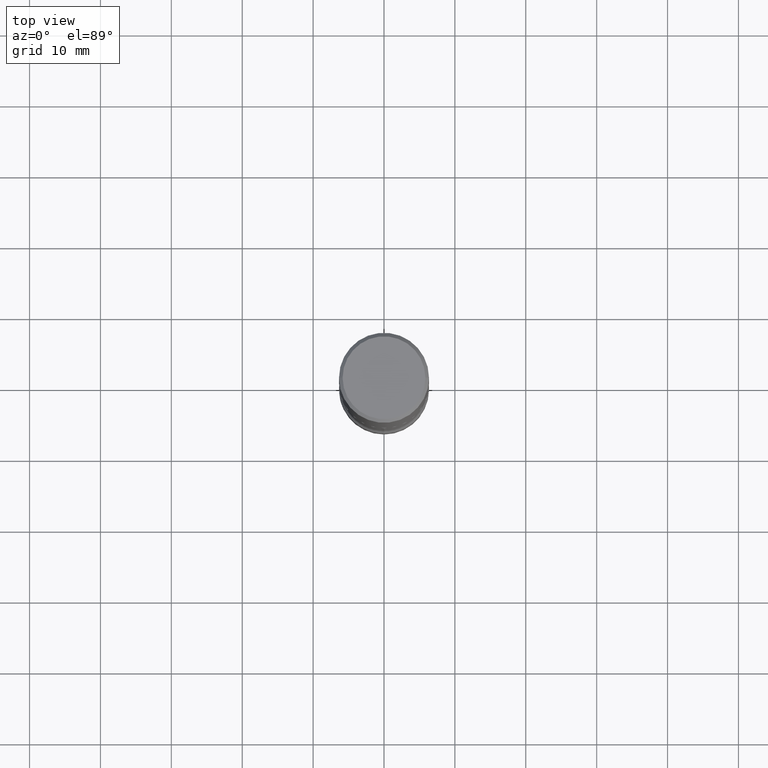
[diagram: clean part render]
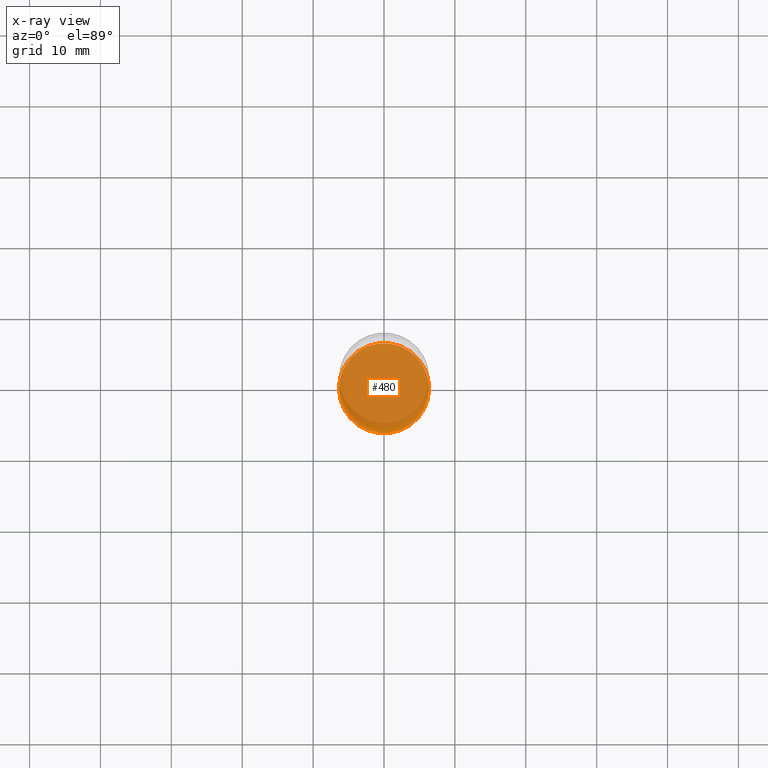
[diagram: x-ray — body ghosted, one internal face saturated and labeled with its STEP entity id]
A machine part, top view, then the same camera in x-ray: the body is ghosted and one INTERNAL B-rep face — a face not visible from any outside direction — is saturated and labeled: STEP entity #480.
In plain terms, the highlighted planar face has unit normal (0, -0, -1).
Its self-contained STEP definition (entity closure, byte-faithful):
#58 = EDGE_CURVE ( 'NONE', #256, #723, #517, .T. ) ;
#85 = DIRECTION ( 'NONE',  ( -2.445468806185136597E-29, 3.491481338843145583E-15, 1.000000000000000000 ) ) ;
#164 = DIRECTION ( 'NONE',  ( 1.000000000000000000, -6.982962677686265133E-15, 0.000000000000000000 ) ) ;
#256 = VERTEX_POINT ( 'NONE', #300 ) ;
#262 = CARTESIAN_POINT ( 'NONE',  ( 8.253457220874836014E-29, -1.178374951859561452E-14, -3.375000000000000000 ) ) ;
#278 = EDGE_CURVE ( 'NONE', #723, #256, #490, .T. ) ;
#289 = AXIS2_PLACEMENT_3D ( 'NONE', #774, #438, #164 ) ;
#291 = DIRECTION ( 'NONE',  ( -1.000000000000000000, 6.982962677686265922E-15, -4.876176775795935793E-29 ) ) ;
#297 = EDGE_LOOP ( 'NONE', ( #519, #591 ) ) ;
#300 = CARTESIAN_POINT ( 'NONE',  ( 0.2499999999999993894, -1.352949018801717646E-14, -3.375000000000000000 ) ) ;
#302 = CARTESIAN_POINT ( 'NONE',  ( -0.2499999999999994171, -1.066204543022846181E-14, -3.375000000000000000 ) ) ;
#423 = CARTESIAN_POINT ( 'NONE',  ( 8.253457220874836014E-29, -1.178374951859561452E-14, -3.375000000000000000 ) ) ;
#432 = PLANE ( 'NONE',  #823 ) ;
#438 = DIRECTION ( 'NONE',  ( -2.445468806185136597E-29, 3.491481338843145583E-15, 1.000000000000000000 ) ) ;
#480 = ADVANCED_FACE ( 'NONE', ( #696 ), #432, .F. ) ;
#490 = CIRCLE ( 'NONE', #289, 0.2499999999999993894 ) ;
#517 = CIRCLE ( 'NONE', #725, 0.2499999999999993894 ) ;
#519 = ORIENTED_EDGE ( 'NONE', *, *, #58, .T. ) ;
#591 = ORIENTED_EDGE ( 'NONE', *, *, #278, .T. ) ;
#696 = FACE_OUTER_BOUND ( 'NONE', #297, .T. ) ;
#723 = VERTEX_POINT ( 'NONE', #302 ) ;
#725 = AXIS2_PLACEMENT_3D ( 'NONE', #262, #85, #749 ) ;
#749 = DIRECTION ( 'NONE',  ( 1.000000000000000000, -6.982962677686265133E-15, 0.000000000000000000 ) ) ;
#773 = DIRECTION ( 'NONE',  ( 2.438088387897960049E-29, -3.491481338843145188E-15, -1.000000000000000000 ) ) ;
#774 = CARTESIAN_POINT ( 'NONE',  ( 8.253457220874836014E-29, -1.178374951859561452E-14, -3.375000000000000000 ) ) ;
#823 = AXIS2_PLACEMENT_3D ( 'NONE', #423, #773, #291 ) ;